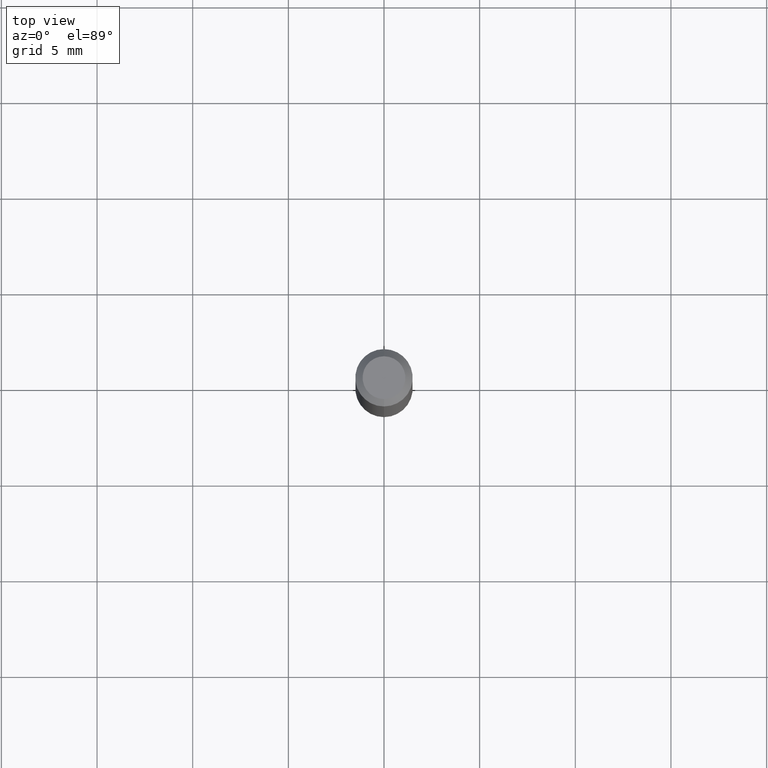
[diagram: clean part render]
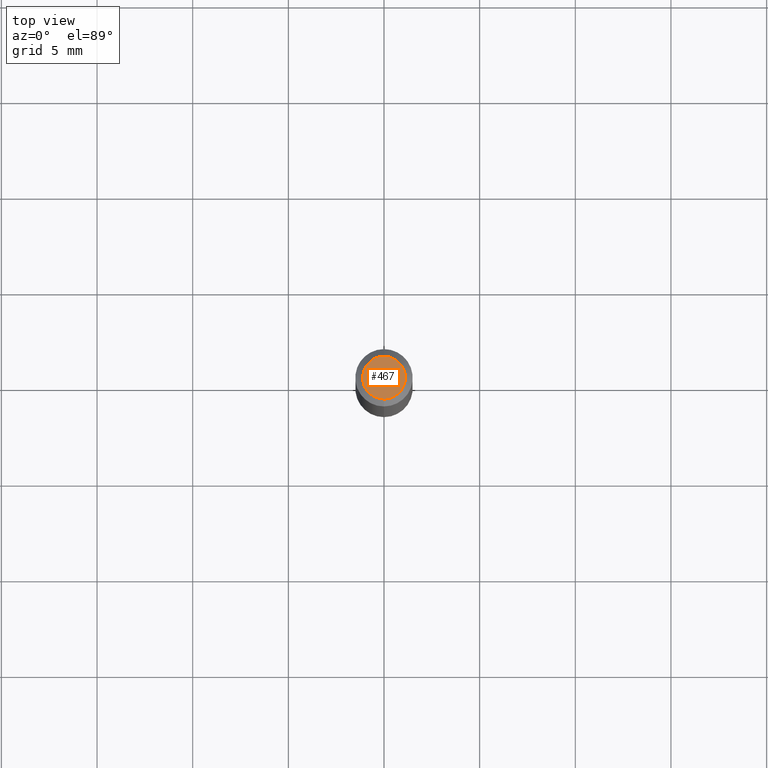
[diagram: same view with one face highlighted and labeled with its STEP entity id]
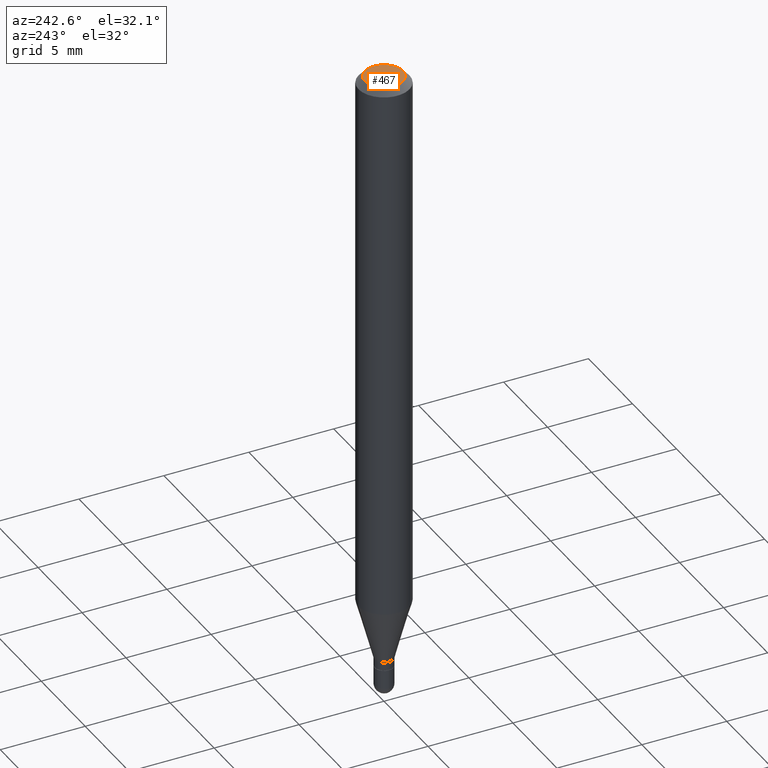
[diagram: same view with one face highlighted and labeled with its STEP entity id]
A machine part, top view. The second image highlights one B-rep face of the part: STEP entity #467.
A second angle (auxiliary view) of the same face is appended — the face is thin or edge-on in the first view.
In plain terms, the highlighted planar face has unit normal (0, -0, -1).
Its self-contained STEP definition (entity closure, byte-faithful):
#14 = DIRECTION ( 'NONE',  ( -2.445429181695314527E-29, 3.491538083367856926E-15, 1.000000000000000000 ) ) ;
#35 = VERTEX_POINT ( 'NONE', #158 ) ;
#49 = DIRECTION ( 'NONE',  ( -6.982962677686265133E-15, -1.000000000000000000, 3.491538083367856532E-15 ) ) ;
#61 = CIRCLE ( 'NONE', #399, 0.04404999999999999888 ) ;
#95 = DIRECTION ( 'NONE',  ( 6.982962677686265922E-15, 1.000000000000000000, -3.491538083367856532E-15 ) ) ;
#109 = EDGE_LOOP ( 'NONE', ( #317, #274 ) ) ;
#134 = CARTESIAN_POINT ( 'NONE',  ( 3.599717260347271507E-16, 0.04404999999999999888, -1.776619958574267204E-16 ) ) ;
#136 = DIRECTION ( 'NONE',  ( -2.445429181695314527E-29, 3.491538083367856926E-15, 1.000000000000000000 ) ) ;
#158 = CARTESIAN_POINT ( 'NONE',  ( -3.536586717851222218E-16, -0.04404999999999999888, 1.299425092872814422E-16 ) ) ;
#188 = AXIS2_PLACEMENT_3D ( 'NONE', #498, #293, #95 ) ;
#274 = ORIENTED_EDGE ( 'NONE', *, *, #369, .T. ) ;
#282 = DIRECTION ( 'NONE',  ( -6.982962677686265133E-15, -1.000000000000000000, 3.491538083367856532E-15 ) ) ;
#293 = DIRECTION ( 'NONE',  ( 2.445429181695314247E-29, -3.491538083367856532E-15, -1.000000000000000000 ) ) ;
#315 = CIRCLE ( 'NONE', #505, 0.04404999999999999888 ) ;
#317 = ORIENTED_EDGE ( 'NONE', *, *, #440, .T. ) ;
#332 = PLANE ( 'NONE',  #188 ) ;
#368 = FACE_OUTER_BOUND ( 'NONE', #109, .T. ) ;
#369 = EDGE_CURVE ( 'NONE', #35, #463, #315, .T. ) ;
#399 = AXIS2_PLACEMENT_3D ( 'NONE', #400, #14, #49 ) ;
#400 = CARTESIAN_POINT ( 'NONE',  ( 5.834731249707548679E-46, -8.330720233921166360E-32, -2.385974328507265138E-17 ) ) ;
#429 = CARTESIAN_POINT ( 'NONE',  ( 5.834731249707548679E-46, -8.330720233921166360E-32, -2.385974328507265138E-17 ) ) ;
#440 = EDGE_CURVE ( 'NONE', #463, #35, #61, .T. ) ;
#463 = VERTEX_POINT ( 'NONE', #134 ) ;
#467 = ADVANCED_FACE ( 'NONE', ( #368 ), #332, .F. ) ;
#498 = CARTESIAN_POINT ( 'NONE',  ( 3.075995059520799729E-16, 0.04404999999999999888, -1.657321242148904193E-16 ) ) ;
#505 = AXIS2_PLACEMENT_3D ( 'NONE', #429, #136, #282 ) ;